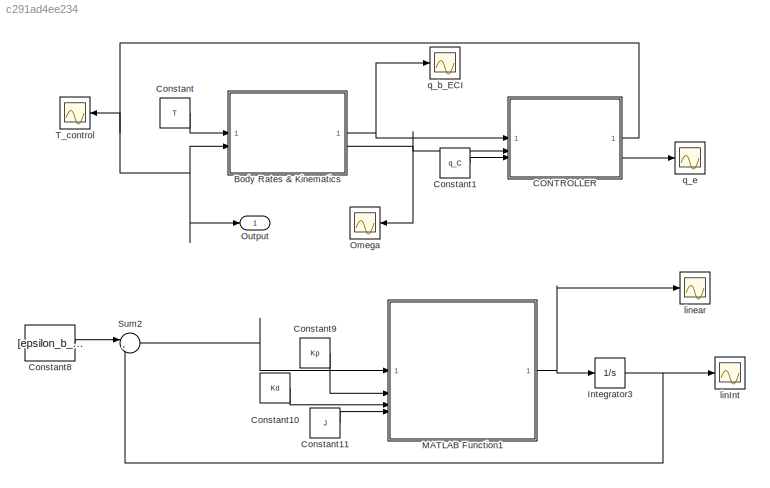
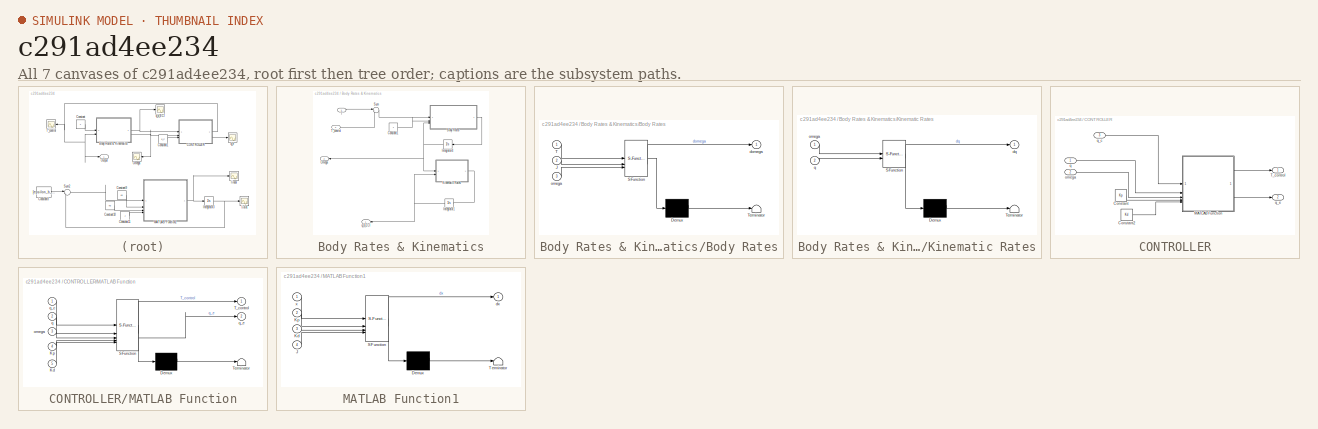
[diagram: thumbnail index - all 7 canvases of the model, root first then tree order]
MODEL slx_c291ad4ee234
KIND model
CONFIG AbsTol = auto
CONFIG EnableMultiTasking = off
CONFIG FixedStep = auto
CONFIG MaxStep = auto
CONFIG MinStep = auto
CONFIG RelTol = 1e-3
CONFIG SampleTimeConstraint = Unconstrained
CONFIG SolverName = VariableStepAuto
CONFIG StartTime = 0.0
CONFIG StopTime = orbital_period
BLOCK [SubSystem] Body Rates & Kinematics
BLOCK [SubSystem] Body Rates & Kinematics/Body Rates
  ErrorFcn = Stateflow.Translate.translate
  PermitHierarchicalResolution = ExplicitOnly
  SFBlockType = MATLAB Function
  TreatAsAtomicUnit = on
BLOCK [Demux] Body Rates & Kinematics/Body Rates/ Demux 
  Outputs = 1
BLOCK [S-Function] Body Rates & Kinematics/Body Rates/ SFunction 
  EnableBusSupport = on
  FunctionName = sf_sfun
  PortCounts = [3 2]
  SFcnIsStateOwnerBlock = off
  SFunctionDeploymentMode = off
  Tag = Stateflow S-Function 6
BLOCK [Terminator] Body Rates & Kinematics/Body Rates/ Terminator 
BLOCK [Inport] Body Rates & Kinematics/Body Rates/J
  Port = 2
BLOCK [Inport] Body Rates & Kinematics/Body Rates/T
BLOCK [Outport] Body Rates & Kinematics/Body Rates/domega
  VectorParamsAs1DForOutWhenUnconnected = off
BLOCK [Inport] Body Rates & Kinematics/Body Rates/omega
  Port = 3
BLOCK [Constant] Body Rates & Kinematics/Constant1
  Value = J
BLOCK [Integrator] Body Rates & Kinematics/Integrator1
  InitialCondition = q_b_ECI_0
BLOCK [Integrator] Body Rates & Kinematics/Integrator4
  InitialCondition = w_b_ECI_0
BLOCK [SubSystem] Body Rates & Kinematics/Kinematic Rates
  ErrorFcn = Stateflow.Translate.translate
  PermitHierarchicalResolution = ExplicitOnly
  SFBlockType = MATLAB Function
  TreatAsAtomicUnit = on
BLOCK [Demux] Body Rates & Kinematics/Kinematic Rates/ Demux 
  Outputs = 1
BLOCK [S-Function] Body Rates & Kinematics/Kinematic Rates/ SFunction 
  EnableBusSupport = on
  FunctionName = sf_sfun
  PortCounts = [2 2]
  SFcnIsStateOwnerBlock = off
  SFunctionDeploymentMode = off
  Tag = Stateflow S-Function 5
BLOCK [Terminator] Body Rates & Kinematics/Kinematic Rates/ Terminator 
BLOCK [Outport] Body Rates & Kinematics/Kinematic Rates/dq
  VectorParamsAs1DForOutWhenUnconnected = off
BLOCK [Inport] Body Rates & Kinematics/Kinematic Rates/omega
BLOCK [Inport] Body Rates & Kinematics/Kinematic Rates/q
  Port = 2
BLOCK [Outport] Body Rates & Kinematics/Omega
  Port = 2
BLOCK [Sum] Body Rates & Kinematics/Sum
  Inputs = |++
BLOCK [Inport] Body Rates & Kinematics/T
BLOCK [Inport] Body Rates & Kinematics/T_control
  Port = 2
BLOCK [Outport] Body Rates & Kinematics/q_b_ECI
BLOCK [SubSystem] CONTROLLER
BLOCK [Constant] CONTROLLER/Constant
  Value = Kp
BLOCK [Constant] CONTROLLER/Constant2
  Value = Kd
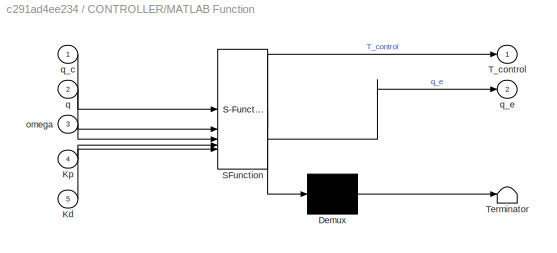
BLOCK [SubSystem] CONTROLLER/MATLAB Function
  ErrorFcn = Stateflow.Translate.translate
  LibrarySourceBlock = simulink/User-Defined\nFunctions/MATLAB Function
  PermitHierarchicalResolution = ExplicitOnly
  SFBlockType = MATLAB Function
  TreatAsAtomicUnit = on
BLOCK [Demux] CONTROLLER/MATLAB Function/ Demux 
  Outputs = 1
BLOCK [S-Function] CONTROLLER/MATLAB Function/ SFunction 
  EnableBusSupport = on
  FunctionName = sf_sfun
  PortCounts = [5 3]
  SFcnIsStateOwnerBlock = off
  SFunctionDeploymentMode = off
  Tag = Stateflow S-Function 1
BLOCK [Terminator] CONTROLLER/MATLAB Function/ Terminator 
BLOCK [Inport] CONTROLLER/MATLAB Function/Kd
  Port = 5
BLOCK [Inport] CONTROLLER/MATLAB Function/Kp
  Port = 4
BLOCK [Outport] CONTROLLER/MATLAB Function/T_control
BLOCK [Inport] CONTROLLER/MATLAB Function/omega
  Port = 3
BLOCK [Inport] CONTROLLER/MATLAB Function/q
  Port = 2
BLOCK [Inport] CONTROLLER/MATLAB Function/q_c
BLOCK [Outport] CONTROLLER/MATLAB Function/q_e
  Port = 2
BLOCK [Outport] CONTROLLER/T_control
BLOCK [Inport] CONTROLLER/omega
  Port = 2
BLOCK [Inport] CONTROLLER/q
BLOCK [Inport] CONTROLLER/q_c
  Port = 3
BLOCK [Outport] CONTROLLER/q_e
  Port = 2
BLOCK [Constant] Constant
  Value = T
  VectorParams1D = off
BLOCK [Constant] Constant1
  Value = q_C
BLOCK [Constant] Constant10
  Value = Kd
BLOCK [Constant] Constant11
  Value = J
BLOCK [Constant] Constant8
  Value = [epsilon_b_ECI_0; w_b_ECI_0]
BLOCK [Constant] Constant9
  Value = Kp
BLOCK [Integrator] Integrator3
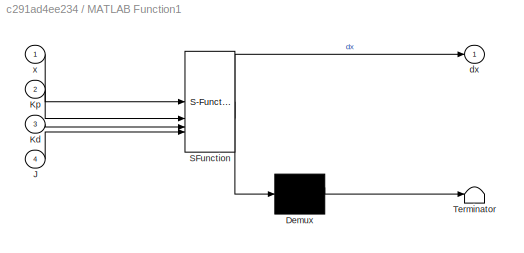
BLOCK [SubSystem] MATLAB Function1
  ErrorFcn = Stateflow.Translate.translate
  LibrarySourceBlock = simulink/User-Defined\nFunctions/MATLAB Function
  PermitHierarchicalResolution = ExplicitOnly
  SFBlockType = MATLAB Function
  TreatAsAtomicUnit = on
BLOCK [Demux] MATLAB Function1/ Demux 
  Outputs = 1
BLOCK [S-Function] MATLAB Function1/ SFunction 
  EnableBusSupport = on
  FunctionName = sf_sfun
  PortCounts = [4 2]
  SFcnIsStateOwnerBlock = off
  SFunctionDeploymentMode = off
  Tag = Stateflow S-Function 3
BLOCK [Terminator] MATLAB Function1/ Terminator 
BLOCK [Inport] MATLAB Function1/J
  Port = 4
BLOCK [Inport] MATLAB Function1/Kd
  Port = 3
BLOCK [Inport] MATLAB Function1/Kp
  Port = 2
BLOCK [Outport] MATLAB Function1/dx
BLOCK [Inport] MATLAB Function1/x
BLOCK [Scope] Omega
  Floating = off
  NameLocation = top
  NumInputPorts = 1
  ScopeSpecificationString = Simulink.scopes.TimeScopeBlockCfg('CurrentConfiguration', extmgr.ConfigurationSet(extmgr.Configuration('Core','General UI',true),extmgr.Configuration('Core','Source UI',true),extmgr.Configuration('Sources','WiredSimulink',true,'DataLoggingVariableName','omega','DataLogging',true,'DataLoggingSaveFormat','StructureWithTime'),extmgr.Configuration('Visuals','Time Domain',true,'SerializedDisplays',{str...<+1545ch>
BLOCK [Outport] Output
  SignalName = T_control
BLOCK [Sum] Sum2
  Inputs = |++
BLOCK [Scope] T_control
  Floating = off
  NameLocation = top
  NumInputPorts = 1
  ScopeSpecificationString = Simulink.scopes.TimeScopeBlockCfg('CurrentConfiguration', extmgr.ConfigurationSet(extmgr.Configuration('Core','General UI',true),extmgr.Configuration('Core','Source UI',true),extmgr.Configuration('Sources','WiredSimulink',true,'DataLoggingVariableName','T_Control','DataLogging',true,'DataLoggingSaveFormat','StructureWithTime'),extmgr.Configuration('Visuals','Time Domain',true,'SerializedDisplays',...<+1533ch>
BLOCK [Scope] linInt
  Floating = off
  NumInputPorts = 1
  ScopeSpecificationString = Simulink.scopes.TimeScopeBlockCfg('CurrentConfiguration', extmgr.ConfigurationSet(extmgr.Configuration('Core','General UI',true),extmgr.Configuration('Core','Source UI',true),extmgr.Configuration('Sources','WiredSimulink',true,'DataLoggingVariableName','linInt','DataLogging',true,'DataLoggingSaveFormat','StructureWithTime'),extmgr.Configuration('Visuals','Time Domain',true,'SerializedDisplays',{st...<+1564ch>
BLOCK [Scope] linear
  Floating = off
  NumInputPorts = 1
  ScopeSpecificationString = Simulink.scopes.TimeScopeBlockCfg('CurrentConfiguration', extmgr.ConfigurationSet(extmgr.Configuration('Core','General UI',true),extmgr.Configuration('Core','Source UI',true),extmgr.Configuration('Sources','WiredSimulink',true,'DataLoggingVariableName','lin','DataLogging',true,'DataLoggingSaveFormat','StructureWithTime'),extmgr.Configuration('Visuals','Time Domain',true,'SerializedDisplays',{struc...<+1566ch>
BLOCK [Scope] q_b_ECI
  Floating = off
  NumInputPorts = 1
  ScopeSpecificationString = Simulink.scopes.TimeScopeBlockCfg('CurrentConfiguration', extmgr.ConfigurationSet(extmgr.Configuration('Core','General UI',true),extmgr.Configuration('Core','Source UI',true),extmgr.Configuration('Sources','WiredSimulink',true,'DataLoggingVariableName','q_b_ECI','DataLogging',true,'DataLoggingSaveFormat','StructureWithTime'),extmgr.Configuration('Visuals','Time Domain',true,'SerializedDisplays',{s...<+1566ch>
BLOCK [Scope] q_e
  Floating = off
  NumInputPorts = 1
  ScopeSpecificationString = Simulink.scopes.TimeScopeBlockCfg('CurrentConfiguration', extmgr.ConfigurationSet(extmgr.Configuration('Core','General UI',true),extmgr.Configuration('Core','Source UI',true),extmgr.Configuration('Sources','WiredSimulink',true,'DataLoggingVariableName','q_e','DataLogging',true,'DataLoggingSaveFormat','StructureWithTime'),extmgr.Configuration('Visuals','Time Domain',true,'SerializedDisplays',{struc...<+1517ch>
LINE Body Rates & Kinematics/Body Rates:1 -> Body Rates & Kinematics/Integrator4:1
LINE Body Rates & Kinematics/Constant1:1 -> Body Rates & Kinematics/Body Rates:2
NET Body Rates & Kinematics/Integrator1:1 -> Body Rates & Kinematics/Kinematic Rates:2, Body Rates & Kinematics/q_b_ECI:1
NET Body Rates & Kinematics/Integrator4:1 -> Body Rates & Kinematics/Body Rates:3, Body Rates & Kinematics/Kinematic Rates:1, Body Rates & Kinematics/Omega:1
LINE Body Rates & Kinematics/Kinematic Rates:1 -> Body Rates & Kinematics/Integrator1:1
LINE Body Rates & Kinematics/Sum:1 -> Body Rates & Kinematics/Body Rates:1
LINE Body Rates & Kinematics/T:1 -> Body Rates & Kinematics/Sum:1
LINE Body Rates & Kinematics/T_control:1 -> Body Rates & Kinematics/Sum:2
NET Body Rates & Kinematics:1 -> CONTROLLER:1, q_b_ECI:1
NET Body Rates & Kinematics:2 -> CONTROLLER:2, Omega:1
LINE CONTROLLER/Constant2:1 -> CONTROLLER/MATLAB Function:5
LINE CONTROLLER/Constant:1 -> CONTROLLER/MATLAB Function:4
LINE CONTROLLER/MATLAB Function:1 -> CONTROLLER/T_control:1
LINE CONTROLLER/MATLAB Function:2 -> CONTROLLER/q_e:1
LINE CONTROLLER/omega:1 -> CONTROLLER/MATLAB Function:3
LINE CONTROLLER/q:1 -> CONTROLLER/MATLAB Function:2
LINE CONTROLLER/q_c:1 -> CONTROLLER/MATLAB Function:1
NET CONTROLLER:1 -> Body Rates & Kinematics:2, Output:1, T_control:1
LINE CONTROLLER:2 -> q_e:1
LINE Constant10:1 -> MATLAB Function1:3
LINE Constant11:1 -> MATLAB Function1:4
LINE Constant1:1 -> CONTROLLER:3
LINE Constant8:1 -> Sum2:1
LINE Constant9:1 -> MATLAB Function1:2
LINE Constant:1 -> Body Rates & Kinematics:1
NET Integrator3:1 -> Sum2:2, linInt:1
NET MATLAB Function1:1 -> Integrator3:1, linear:1
LINE Sum2:1 -> MATLAB Function1:1
note: NET lines group one-source signal fan-out (src -> all destinations, sorted); 1:1 wires keep LINE
CHART CONTROLLER/MATLAB Function states=1 transitions=1
  STATE_LABEL 'eML_blk_kernel()'
  STATE_LABEL 'SCRIPT:\nfunction [T_control, q_e] = controller(q_c, q, omega, Kp, Kd)\n%#codegen\n% q_e = quatMult(q, quatConjugate(q_c));\n\n% Quat conjugate rotated\nq_c_conj = [q_c(1), -q_c(2), -q_c(3), -q_c(4)];\np0 = q_c_conj(1); p1 = q_c_conj(2); p2 = q_c_conj(3); p3 = q_c_conj(4);\n\n% Quat multiplication\nq0 = q(1,1); q1 = q(2); q2 = q(3); q3 = q(4);\n\nq1 = q0 * p0 - q1 * p1 - q2 * p2 - q3 * p3;\nq2 = q0 * p1 + q1 *...<+241ch>'
CHART MATLAB Function1 states=1 transitions=1
  STATE_LABEL 'eML_blk_kernel()'
  STATE_LABEL 'SCRIPT:\nfunction dx = linModel(x, Kp, Kd, J)\n    theta = x(1:3);  % Angular pos\n    omega = x(4:6);  % Angular vel\n    \n    % PD Controller\n    tau = -Kp *(theta -  [0; 0; 0]) - Kd*(omega - [0; 0; 0]);\n    M = tau.*[2; 2; 2];\n    \n    alpha = J\\(M- cross(omega, J*omega));\n\n    dx = [omega; alpha];\nend\n'
CHART Body Rates & Kinematics/Kinematic Rates states=1 transitions=1
  STATE_LABEL 'eML_blk_kernel()'
  STATE_LABEL 'SCRIPT:\nfunction dq  = kinematics(omega, q)\n%#codegen\n\n% I = eye(3); %Identity\n% \n% unpack quaternion\n% eps1 = q(1);\n% eps2 = q(2);\n% eps3 = q(3);\n% eps = [eps1; eps2; eps3];\n% \n% eda = q(4);\n% \n% compute the derivative of the quaternion components here\n%              \n% Quaternion rates Eq.1.56\n% eps_cross = [0,  -eps3, eps2;\n%              eps3,  0, -eps1;\n%              -eps2, eps1, 0];\n% \n% de...<+770ch>'
CHART Body Rates & Kinematics/Body Rates states=1 transitions=1
  STATE_LABEL 'eML_blk_kernel()'
  STATE_LABEL 'SCRIPT:\nfunction domega = dynamics(T, J, omega)\n%#codegen\n\n\n% Compute the derivative of the angular velocity $\\omega$ here\n\ndomega = J \\ (T - cross(-omega, J*omega));\n\n% phi = omega(1);\n% theta = omega(2);\n% psi = omega(3);\n% \n% %From body to euler rates\n% matrix = [1 sin(phi)*tan(theta) cos(phi)*tan(theta);\n%           0    cos(phi)            -sin(phi);\n%           0 sin(phi)*sec(theta) cos(phi)...<+48ch>'
CHART  states=0 transitions=0
CHART  states=0 transitions=0
CHART  states=0 transitions=0
CHART  states=0 transitions=0
